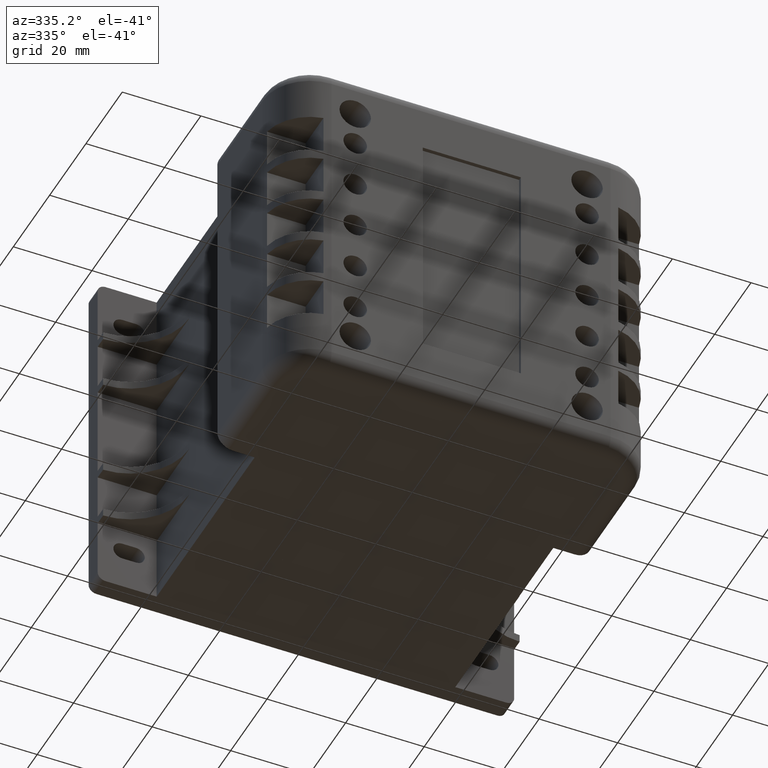
[diagram: clean part render]
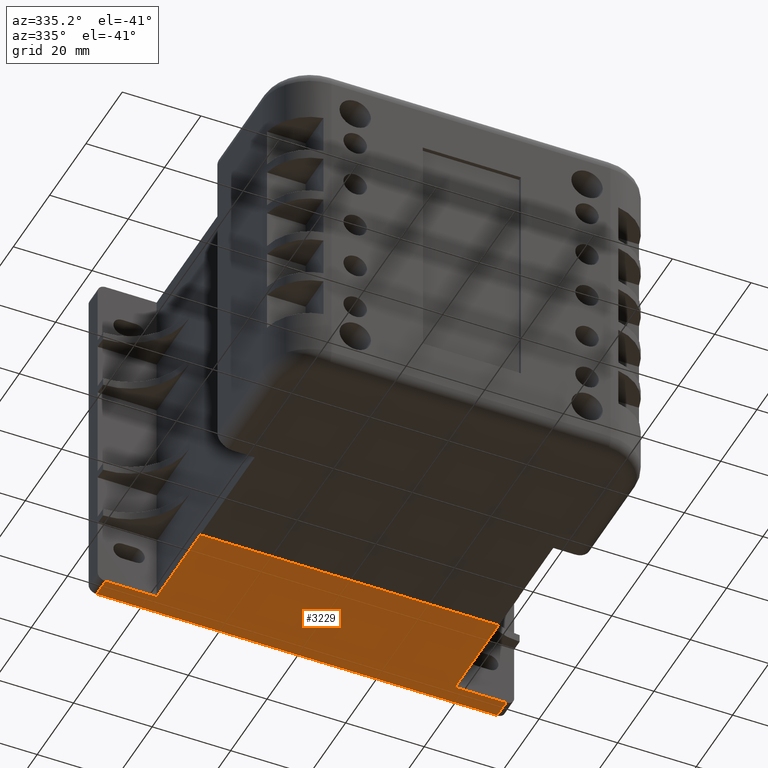
[diagram: same view with one face highlighted and labeled with its STEP entity id]
A machine part, auxiliary view. The second image highlights one B-rep face of the part: STEP entity #3229.
In plain terms, the highlighted planar face has unit normal (0, 0, -1).
Its self-contained STEP definition (entity closure, byte-faithful):
#360=FACE_OUTER_BOUND('',#578,.T.);
#578=EDGE_LOOP('',(#2488,#2489,#2490,#2491,#2492,#2493,#2494,#2495));
#809=LINE('',#5113,#1113);
#811=LINE('',#5119,#1115);
#814=LINE('',#5124,#1118);
#818=LINE('',#5135,#1122);
#851=LINE('',#5236,#1155);
#852=LINE('',#5238,#1156);
#853=LINE('',#5239,#1157);
#854=LINE('',#5240,#1158);
#1113=VECTOR('',#4229,10.);
#1115=VECTOR('',#4233,10.);
#1118=VECTOR('',#4238,10.);
#1122=VECTOR('',#4248,10.);
#1155=VECTOR('',#4349,10.);
#1156=VECTOR('',#4350,10.);
#1157=VECTOR('',#4351,10.);
#1158=VECTOR('',#4352,10.);
#1403=VERTEX_POINT('',#5107);
#1405=VERTEX_POINT('',#5111);
#1406=VERTEX_POINT('',#5115);
#1408=VERTEX_POINT('',#5118);
#1413=VERTEX_POINT('',#5133);
#1446=VERTEX_POINT('',#5234);
#1447=VERTEX_POINT('',#5235);
#1448=VERTEX_POINT('',#5237);
#1757=EDGE_CURVE('',#1403,#1405,#809,.T.);
#1759=EDGE_CURVE('',#1406,#1408,#811,.T.);
#1762=EDGE_CURVE('',#1408,#1405,#814,.T.);
#1768=EDGE_CURVE('',#1413,#1406,#818,.T.);
#1817=EDGE_CURVE('',#1446,#1447,#851,.T.);
#1818=EDGE_CURVE('',#1447,#1448,#852,.T.);
#1819=EDGE_CURVE('',#1403,#1448,#853,.T.);
#1820=EDGE_CURVE('',#1446,#1413,#854,.T.);
#2488=ORIENTED_EDGE('',*,*,#1817,.T.);
#2489=ORIENTED_EDGE('',*,*,#1818,.T.);
#2490=ORIENTED_EDGE('',*,*,#1819,.F.);
#2491=ORIENTED_EDGE('',*,*,#1757,.T.);
#2492=ORIENTED_EDGE('',*,*,#1762,.F.);
#2493=ORIENTED_EDGE('',*,*,#1759,.F.);
#2494=ORIENTED_EDGE('',*,*,#1768,.F.);
#2495=ORIENTED_EDGE('',*,*,#1820,.F.);
#2854=PLANE('',#3615);
#3229=ADVANCED_FACE('',(#360),#2854,.T.);
#3615=AXIS2_PLACEMENT_3D('',#5233,#4347,#4348);
#4229=DIRECTION('',(0.,1.,0.));
#4233=DIRECTION('',(0.,1.,0.));
#4238=DIRECTION('',(-1.,0.,5.1874673076112E-16));
#4248=DIRECTION('',(-1.,0.,0.));
#4347=DIRECTION('center_axis',(0.,0.,-1.));
#4348=DIRECTION('ref_axis',(-1.,0.,0.));
#4349=DIRECTION('',(-1.,0.,0.));
#4350=DIRECTION('',(0.,1.,0.));
#4351=DIRECTION('',(-1.,0.,0.));
#4352=DIRECTION('',(0.,1.,0.));
#5107=CARTESIAN_POINT('',(-91.,5.,3.8976147498401E-15));
#5111=CARTESIAN_POINT('',(-91.,29.,0.));
#5113=CARTESIAN_POINT('',(-91.,5.,3.8976147498401E-15));
#5115=CARTESIAN_POINT('',(-15.,5.,-3.5527136788005E-14));
#5118=CARTESIAN_POINT('',(-15.,29.,-3.5527136788005E-14));
#5119=CARTESIAN_POINT('',(-15.,5.,-3.5527136788005E-14));
#5124=CARTESIAN_POINT('',(-15.,29.,-3.5527136788005E-14));
#5133=CARTESIAN_POINT('',(-1.99999999999999,5.,0.));
#5135=CARTESIAN_POINT('',(-2.,5.,0.));
#5233=CARTESIAN_POINT('Origin',(-2.,0.,0.));
#5234=CARTESIAN_POINT('',(-2.,0.,0.));
#5235=CARTESIAN_POINT('',(-104.,0.,0.));
#5236=CARTESIAN_POINT('',(-2.,0.,0.));
#5237=CARTESIAN_POINT('',(-104.,5.,0.));
#5238=CARTESIAN_POINT('',(-104.,0.,0.));
#5239=CARTESIAN_POINT('',(-2.,5.,0.));
#5240=CARTESIAN_POINT('',(-2.,0.,0.));